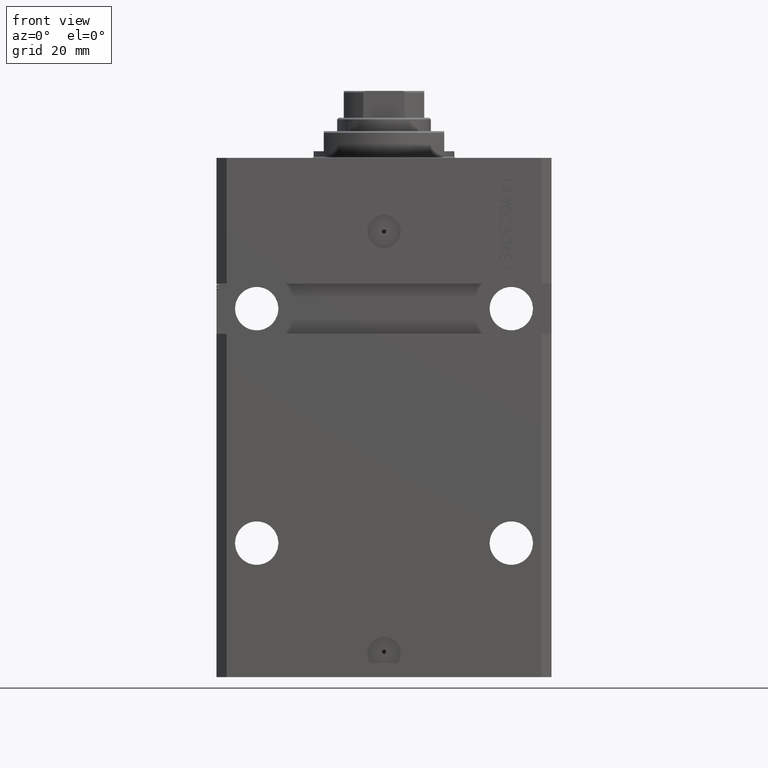
[diagram: clean part render]
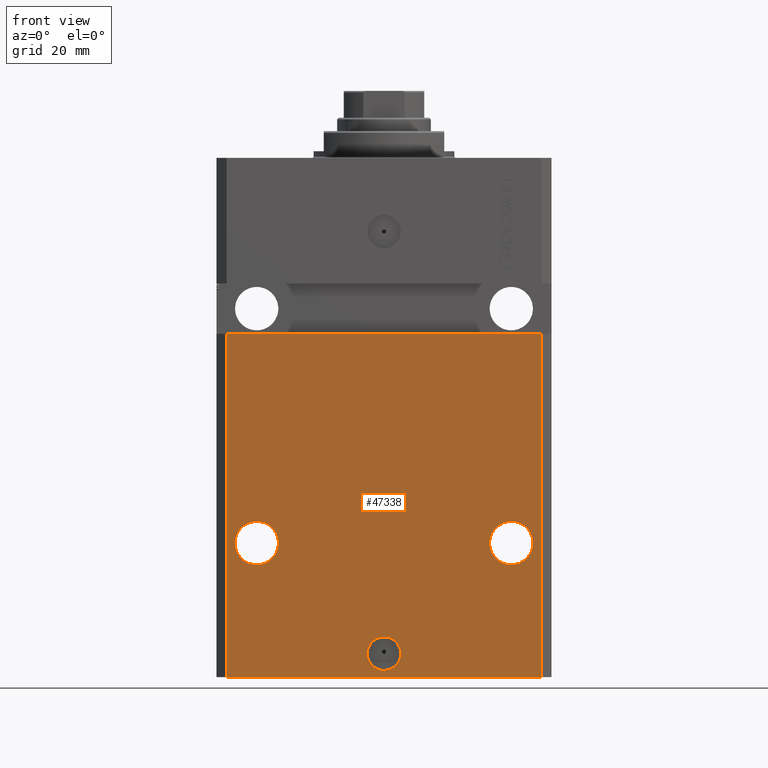
[diagram: same view with one face highlighted and labeled with its STEP entity id]
A machine part, front view. The second image highlights one B-rep face of the part: STEP entity #47338.
In plain terms, the highlighted planar face has unit normal (-0, -1, 0).
Its self-contained STEP definition (entity closure, byte-faithful):
#1165 = DIRECTION ( 'NONE',  ( -1.000000000000000000, 0.000000000000000000, 0.000000000000000000 ) ) ;
#1398 = CARTESIAN_POINT ( 'NONE',  ( -38.00000000000002842, -37.50000000000000711, -115.0000000000000000 ) ) ;
#1615 = ORIENTED_EDGE ( 'NONE', *, *, #21062, .F. ) ;
#1810 = EDGE_LOOP ( 'NONE', ( #1615, #24026 ) ) ;
#2073 = ORIENTED_EDGE ( 'NONE', *, *, #32521, .F. ) ;
#2265 = DIRECTION ( 'NONE',  ( 1.000000000000000000, 0.000000000000000000, 0.000000000000000000 ) ) ;
#2671 = CARTESIAN_POINT ( 'NONE',  ( 31.50000000000001421, -37.49999999999999289, -115.0000000000000000 ) ) ;
#3234 = CARTESIAN_POINT ( 'NONE',  ( -47.00000000000000000, -37.49999999999999289, -155.0000000000000000 ) ) ;
#3284 = CARTESIAN_POINT ( 'NONE',  ( 47.00000000000000000, -37.50000000000000711, -155.0000000000000000 ) ) ;
#4086 = DIRECTION ( 'NONE',  ( 1.176083712526788232E-16, -1.000000000000000000, 0.000000000000000000 ) ) ;
#4257 = AXIS2_PLACEMENT_3D ( 'NONE', #6965, #25989, #21846 ) ;
#4471 = ORIENTED_EDGE ( 'NONE', *, *, #7011, .F. ) ;
#4665 = EDGE_CURVE ( 'NONE', #40484, #21199, #46071, .T. ) ;
#4706 = CARTESIAN_POINT ( 'NONE',  ( 5.000000000000000888, -37.50000000000000000, -148.0000000000000000 ) ) ;
#4783 = DIRECTION ( 'NONE',  ( -1.000000000000000000, 0.000000000000000000, 0.000000000000000000 ) ) ;
#5315 = VERTEX_POINT ( 'NONE', #32242 ) ;
#5866 = CIRCLE ( 'NONE', #35437, 6.499999999999999112 ) ;
#6818 = LINE ( 'NONE', #44822, #39914 ) ;
#6965 = CARTESIAN_POINT ( 'NONE',  ( -5.536351519074916863E-15, -37.50000000000000000, -148.0000000000000000 ) ) ;
#7011 = EDGE_CURVE ( 'NONE', #7999, #5315, #5866, .T. ) ;
#7999 = VERTEX_POINT ( 'NONE', #17222 ) ;
#8304 = AXIS2_PLACEMENT_3D ( 'NONE', #20808, #32498, #32018 ) ;
#8378 = CARTESIAN_POINT ( 'NONE',  ( -46.99999999999998579, -37.50000000000000711, -52.50000000000000000 ) ) ;
#8623 = EDGE_CURVE ( 'NONE', #25147, #8998, #6818, .T. ) ;
#8732 = PLANE ( 'NONE',  #36796 ) ;
#8998 = VERTEX_POINT ( 'NONE', #39804 ) ;
#10465 = CIRCLE ( 'NONE', #4257, 5.000000000000006217 ) ;
#10590 = DIRECTION ( 'NONE',  ( 0.000000000000000000, 0.000000000000000000, 1.000000000000000000 ) ) ;
#11298 = CARTESIAN_POINT ( 'NONE',  ( 38.00000000000001421, -37.49999999999999289, -115.0000000000000000 ) ) ;
#11449 = DIRECTION ( 'NONE',  ( 1.000000000000000000, 1.387778780781445182E-16, 1.387778780781445182E-16 ) ) ;
#12093 = DIRECTION ( 'NONE',  ( 1.176083712526788232E-16, -1.000000000000000000, 0.000000000000000000 ) ) ;
#12782 = VECTOR ( 'NONE', #20486, 1000.000000000000000 ) ;
#12972 = EDGE_CURVE ( 'NONE', #16799, #16503, #10465, .T. ) ;
#13399 = ORIENTED_EDGE ( 'NONE', *, *, #24025, .F. ) ;
#14077 = VECTOR ( 'NONE', #10590, 1000.000000000000000 ) ;
#15435 = DIRECTION ( 'NONE',  ( 1.176083712526788232E-16, -1.000000000000000000, 0.000000000000000000 ) ) ;
#16056 = FACE_OUTER_BOUND ( 'NONE', #43181, .T. ) ;
#16294 = FACE_BOUND ( 'NONE', #31029, .T. ) ;
#16341 = AXIS2_PLACEMENT_3D ( 'NONE', #46837, #20777, #2265 ) ;
#16503 = VERTEX_POINT ( 'NONE', #48079 ) ;
#16544 = EDGE_CURVE ( 'NONE', #45351, #29503, #23702, .T. ) ;
#16799 = VERTEX_POINT ( 'NONE', #4706 ) ;
#17187 = DIRECTION ( 'NONE',  ( -1.476360405086644309E-16, -1.000000000000000000, 0.000000000000000000 ) ) ;
#17222 = CARTESIAN_POINT ( 'NONE',  ( -44.50000000000002842, -37.50000000000000711, -115.0000000000000000 ) ) ;
#17428 = ORIENTED_EDGE ( 'NONE', *, *, #8623, .F. ) ;
#18341 = CARTESIAN_POINT ( 'NONE',  ( 47.00000000000000000, -37.50000000000000711, -155.0000000000000000 ) ) ;
#19412 = LINE ( 'NONE', #45959, #46730 ) ;
#20486 = DIRECTION ( 'NONE',  ( 1.000000000000000000, -1.476360405086644309E-16, 0.000000000000000000 ) ) ;
#20777 = DIRECTION ( 'NONE',  ( 1.176083712526788232E-16, -1.000000000000000000, 0.000000000000000000 ) ) ;
#20808 = CARTESIAN_POINT ( 'NONE',  ( 38.00000000000001421, -37.49999999999999289, -115.0000000000000000 ) ) ;
#21062 = EDGE_CURVE ( 'NONE', #29503, #45351, #36286, .T. ) ;
#21199 = VERTEX_POINT ( 'NONE', #18341 ) ;
#21600 = CIRCLE ( 'NONE', #34851, 6.499999999999999112 ) ;
#21846 = DIRECTION ( 'NONE',  ( 1.000000000000000000, 0.000000000000000000, 0.000000000000000000 ) ) ;
#23702 = CIRCLE ( 'NONE', #29153, 6.499999999999999112 ) ;
#24025 = EDGE_CURVE ( 'NONE', #5315, #7999, #21600, .T. ) ;
#24026 = ORIENTED_EDGE ( 'NONE', *, *, #16544, .F. ) ;
#25147 = VERTEX_POINT ( 'NONE', #8378 ) ;
#25989 = DIRECTION ( 'NONE',  ( 1.176083712526788232E-16, -1.000000000000000000, 0.000000000000000000 ) ) ;
#26396 = ORIENTED_EDGE ( 'NONE', *, *, #33897, .F. ) ;
#26740 = DIRECTION ( 'NONE',  ( 0.000000000000000000, 0.000000000000000000, 1.000000000000000000 ) ) ;
#27509 = EDGE_LOOP ( 'NONE', ( #13399, #4471 ) ) ;
#29153 = AXIS2_PLACEMENT_3D ( 'NONE', #11298, #15435, #41503 ) ;
#29503 = VERTEX_POINT ( 'NONE', #36259 ) ;
#30442 = FACE_BOUND ( 'NONE', #27509, .T. ) ;
#31015 = ORIENTED_EDGE ( 'NONE', *, *, #34157, .T. ) ;
#31029 = EDGE_LOOP ( 'NONE', ( #34899, #2073 ) ) ;
#32018 = DIRECTION ( 'NONE',  ( 1.000000000000000000, 0.000000000000000000, 0.000000000000000000 ) ) ;
#32242 = CARTESIAN_POINT ( 'NONE',  ( -31.50000000000002842, -37.50000000000000711, -115.0000000000000000 ) ) ;
#32498 = DIRECTION ( 'NONE',  ( 1.176083712526788232E-16, -1.000000000000000000, 0.000000000000000000 ) ) ;
#32521 = EDGE_CURVE ( 'NONE', #16503, #16799, #38125, .T. ) ;
#33897 = EDGE_CURVE ( 'NONE', #40484, #25147, #19412, .T. ) ;
#34157 = EDGE_CURVE ( 'NONE', #21199, #8998, #36911, .T. ) ;
#34851 = AXIS2_PLACEMENT_3D ( 'NONE', #37205, #12093, #4783 ) ;
#34899 = ORIENTED_EDGE ( 'NONE', *, *, #12972, .F. ) ;
#35437 = AXIS2_PLACEMENT_3D ( 'NONE', #1398, #4086, #1165 ) ;
#36259 = CARTESIAN_POINT ( 'NONE',  ( 44.50000000000001421, -37.49999999999999289, -115.0000000000000000 ) ) ;
#36286 = CIRCLE ( 'NONE', #8304, 6.499999999999999112 ) ;
#36647 = ORIENTED_EDGE ( 'NONE', *, *, #4665, .T. ) ;
#36796 = AXIS2_PLACEMENT_3D ( 'NONE', #45539, #17187, #38236 ) ;
#36911 = LINE ( 'NONE', #3284, #14077 ) ;
#37205 = CARTESIAN_POINT ( 'NONE',  ( -38.00000000000002842, -37.50000000000000711, -115.0000000000000000 ) ) ;
#38125 = CIRCLE ( 'NONE', #16341, 5.000000000000006217 ) ;
#38236 = DIRECTION ( 'NONE',  ( 1.000000000000000000, -1.476360405086644309E-16, 0.000000000000000000 ) ) ;
#38477 = FACE_BOUND ( 'NONE', #1810, .T. ) ;
#39804 = CARTESIAN_POINT ( 'NONE',  ( 47.00000000000000000, -37.49999999999999289, -52.49999999999998579 ) ) ;
#39914 = VECTOR ( 'NONE', #11449, 1000.000000000000000 ) ;
#40484 = VERTEX_POINT ( 'NONE', #3234 ) ;
#41503 = DIRECTION ( 'NONE',  ( 1.000000000000000000, 0.000000000000000000, 0.000000000000000000 ) ) ;
#42424 = CARTESIAN_POINT ( 'NONE',  ( -47.00000000000000000, -37.49999999999999289, -155.0000000000000000 ) ) ;
#43181 = EDGE_LOOP ( 'NONE', ( #17428, #26396, #36647, #31015 ) ) ;
#44822 = CARTESIAN_POINT ( 'NONE',  ( -50.00000000000002842, -37.50000000000000711, -52.50000000000000000 ) ) ;
#45351 = VERTEX_POINT ( 'NONE', #2671 ) ;
#45539 = CARTESIAN_POINT ( 'NONE',  ( -47.00000000000000000, -37.49999999999999289, -155.0000000000000000 ) ) ;
#45959 = CARTESIAN_POINT ( 'NONE',  ( -47.00000000000000000, -37.49999999999999289, -155.0000000000000000 ) ) ;
#46071 = LINE ( 'NONE', #42424, #12782 ) ;
#46730 = VECTOR ( 'NONE', #26740, 1000.000000000000000 ) ;
#46837 = CARTESIAN_POINT ( 'NONE',  ( -5.536351519074916863E-15, -37.50000000000000000, -148.0000000000000000 ) ) ;
#47338 = ADVANCED_FACE ( 'NONE', ( #16294, #38477, #30442, #16056 ), #8732, .T. ) ;
#48079 = CARTESIAN_POINT ( 'NONE',  ( -5.000000000000011546, -37.50000000000000000, -148.0000000000000000 ) ) ;